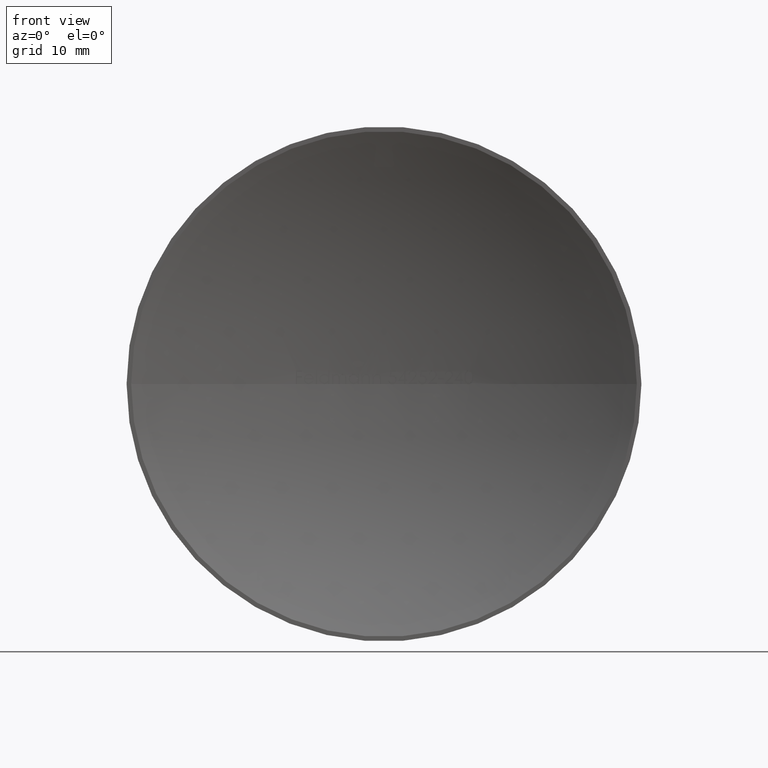
[diagram: clean part render]
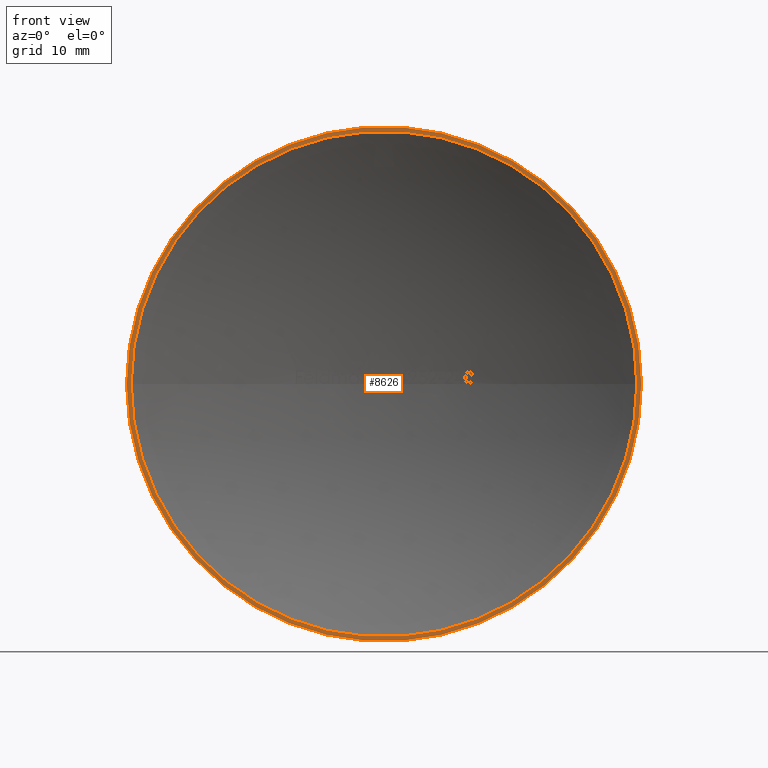
[diagram: same view with one face highlighted and labeled with its STEP entity id]
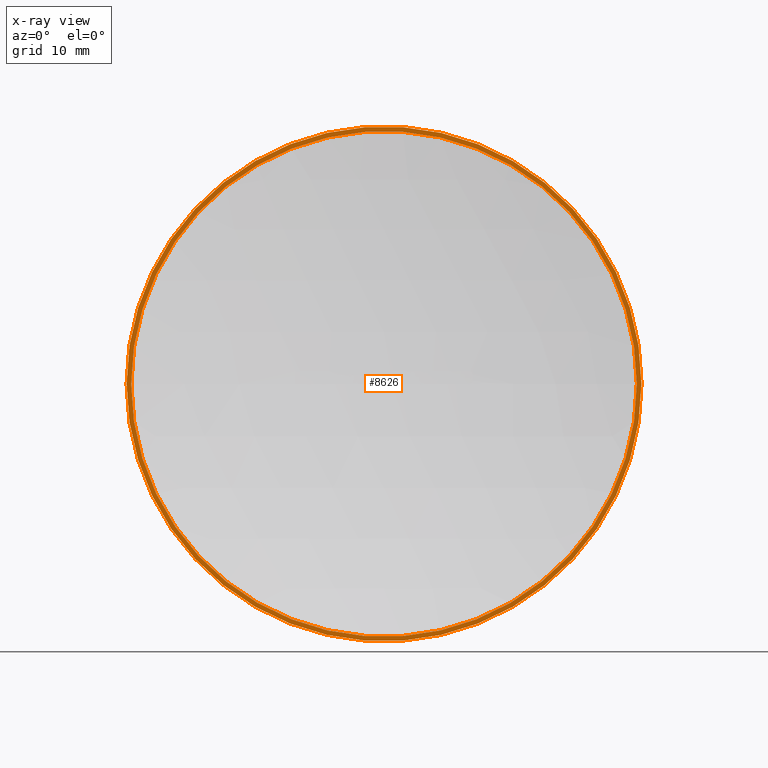
[diagram: x-ray of the same camera — body ghosted, the highlighted face saturated]
A machine part, front view. The second image highlights one B-rep face of the part: STEP entity #8626.
The next image is the same camera in x-ray: the body ghosted, the highlighted face saturated — about 0% of this face is hidden behind the body in this view.
In plain terms, the highlighted planar face has unit normal (-0, -1, 0).
Its self-contained STEP definition (entity closure, byte-faithful):
#83 = DIRECTION ( 'NONE',  ( -8.266173071429340400E-015, -1.000000000000000000, 0.0000000000000000000 ) ) ;
#187 = AXIS2_PLACEMENT_3D ( 'NONE', #6225, #4470, #12106 ) ;
#409 = CIRCLE ( 'NONE', #187, 25.53429066960745100 ) ;
#758 = CARTESIAN_POINT ( 'NONE',  ( -4.959703842857422200E-014, 2.116362640691704700E-013, 0.0000000000000000000 ) ) ;
#907 = DIRECTION ( 'NONE',  ( 1.000000000000000000, -8.266173071429340400E-015, 0.0000000000000000000 ) ) ;
#1012 = CARTESIAN_POINT ( 'NONE',  ( 26.00000000000000000, -6.912825945898670200E-015, 0.0000000000000000000 ) ) ;
#1146 = CIRCLE ( 'NONE', #8125, 26.00000000000004600 ) ;
#1618 = DIRECTION ( 'NONE',  ( -8.266173071429340400E-015, -1.000000000000000000, -0.0000000000000000000 ) ) ;
#2366 = VERTEX_POINT ( 'NONE', #4329 ) ;
#2386 = EDGE_LOOP ( 'NONE', ( #3739, #6615 ) ) ;
#2439 = CARTESIAN_POINT ( 'NONE',  ( -4.959703842857429100E-014, 2.038300084272748300E-013, 0.0000000000000000000 ) ) ;
#2526 = DIRECTION ( 'NONE',  ( 1.000000000000000000, -8.266173071429340400E-015, 0.0000000000000000000 ) ) ;
#2652 = CARTESIAN_POINT ( 'NONE',  ( -26.00000000000009600, 4.265567639263336700E-013, 3.184081677783124900E-015 ) ) ;
#3138 = VERTEX_POINT ( 'NONE', #2652 ) ;
#3739 = ORIENTED_EDGE ( 'NONE', *, *, #5137, .F. ) ;
#4328 = VERTEX_POINT ( 'NONE', #7330 ) ;
#4329 = CARTESIAN_POINT ( 'NONE',  ( -25.53429066960701400, 4.156172542964335300E-013, 0.0000000000000000000 ) ) ;
#4470 = DIRECTION ( 'NONE',  ( -8.266173071429340400E-015, -1.000000000000000000, -0.0000000000000000000 ) ) ;
#4769 = ORIENTED_EDGE ( 'NONE', *, *, #5807, .T. ) ;
#4947 = CIRCLE ( 'NONE', #7324, 26.00000000000004600 ) ;
#5137 = EDGE_CURVE ( 'NONE', #2366, #5532, #409, .T. ) ;
#5229 = FACE_OUTER_BOUND ( 'NONE', #9560, .T. ) ;
#5532 = VERTEX_POINT ( 'NONE', #7945 ) ;
#5622 = DIRECTION ( 'NONE',  ( 1.000000000000000000, -8.266173071429340400E-015, 0.0000000000000000000 ) ) ;
#5737 = AXIS2_PLACEMENT_3D ( 'NONE', #1012, #83, #10755 ) ;
#5807 = EDGE_CURVE ( 'NONE', #3138, #4328, #1146, .T. ) ;
#6225 = CARTESIAN_POINT ( 'NONE',  ( -4.959703842857429100E-014, 2.038300084272748300E-013, 0.0000000000000000000 ) ) ;
#6310 = CIRCLE ( 'NONE', #9300, 25.53429066960745100 ) ;
#6346 = EDGE_CURVE ( 'NONE', #4328, #3138, #4947, .T. ) ;
#6439 = FACE_BOUND ( 'NONE', #2386, .T. ) ;
#6615 = ORIENTED_EDGE ( 'NONE', *, *, #6618, .F. ) ;
#6618 = EDGE_CURVE ( 'NONE', #5532, #2366, #6310, .T. ) ;
#7324 = AXIS2_PLACEMENT_3D ( 'NONE', #8704, #10620, #907 ) ;
#7330 = CARTESIAN_POINT ( 'NONE',  ( 26.00000000000000000, -3.284235787992766600E-015, 0.0000000000000000000 ) ) ;
#7809 = PLANE ( 'NONE',  #5737 ) ;
#7945 = CARTESIAN_POINT ( 'NONE',  ( 25.53429066960740500, -7.089875703895476300E-015, -3.127048733703229500E-015 ) ) ;
#8125 = AXIS2_PLACEMENT_3D ( 'NONE', #758, #9500, #5622 ) ;
#8277 = ORIENTED_EDGE ( 'NONE', *, *, #6346, .T. ) ;
#8626 = ADVANCED_FACE ( 'NONE', ( #5229, #6439 ), #7809, .T. ) ;
#8704 = CARTESIAN_POINT ( 'NONE',  ( -4.959703842857422200E-014, 2.116362640691704700E-013, 0.0000000000000000000 ) ) ;
#9300 = AXIS2_PLACEMENT_3D ( 'NONE', #2439, #1618, #2526 ) ;
#9500 = DIRECTION ( 'NONE',  ( -8.266173071429340400E-015, -1.000000000000000000, -0.0000000000000000000 ) ) ;
#9560 = EDGE_LOOP ( 'NONE', ( #8277, #4769 ) ) ;
#10620 = DIRECTION ( 'NONE',  ( -8.266173071429340400E-015, -1.000000000000000000, -0.0000000000000000000 ) ) ;
#10755 = DIRECTION ( 'NONE',  ( 1.000000000000000000, -8.266173071429340400E-015, 0.0000000000000000000 ) ) ;
#12106 = DIRECTION ( 'NONE',  ( 1.000000000000000000, -8.266173071429340400E-015, 0.0000000000000000000 ) ) ;